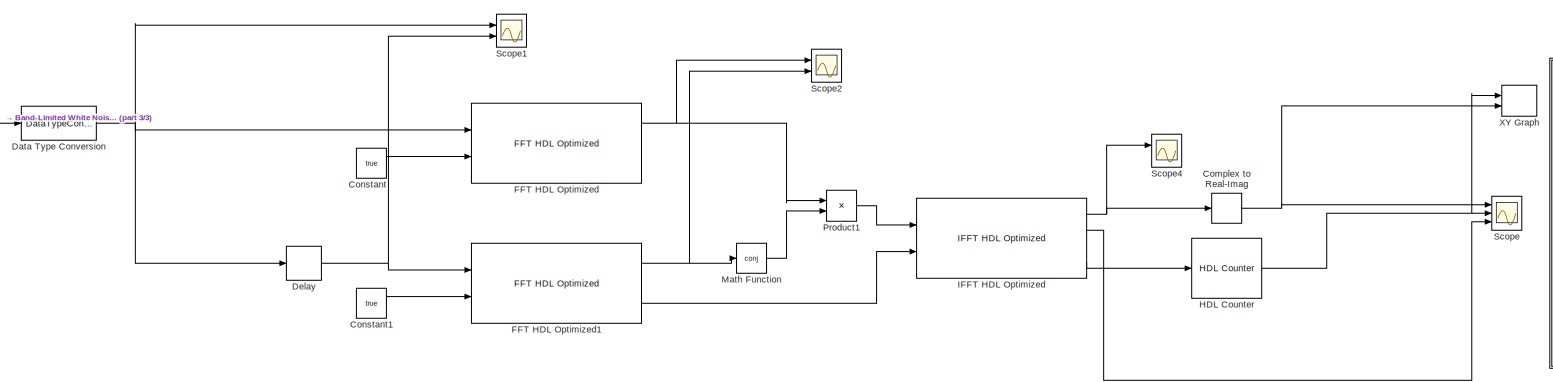
[diagram: root canvas - part 1/3, most of the canvas]
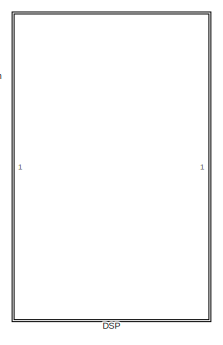
[diagram: root canvas - part 2/3, right side, full height]
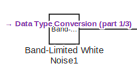
[diagram: root canvas - part 3/3, middle left region]
MODEL slx_fb6486566f5a
KIND model
CONFIG AbsTol = auto
CONFIG EnableMultiTasking = off
CONFIG FixedStep = 1/312.5e6
CONFIG MaxStep = auto
CONFIG MinStep = auto
CONFIG RelTol = 1e-3
CONFIG SampleTimeConstraint = Unconstrained
CONFIG SolverName = FixedStepDiscrete
CONFIG StartTime = 0.0
CONFIG StopTime = 0.0001
WORKSPACE source: mxarray member
WORKSPACE test = 0
BLOCK [Reference] Band-Limited White Noise1  REF=simulink/Sources/Band-Limited
White Noise
  Ports = [0, 1]
  SourceBlock = simulink/Sources/Band-Limited\nWhite Noise
  SourceProductBaseCode = SL
  SourceType = Band-Limited White Noise.
BLOCK [ComplexToRealImag] Complex to Real-Imag
  Output = Real
  Ports = [1, 1]
BLOCK [Constant] Constant
  Value = true
BLOCK [Constant] Constant1
  Value = true
BLOCK [SubSystem] DSP
  Ports = []
  RequestExecContextInheritance = off
BLOCK [DataTypeConversion] Data Type Conversion
  ConvertRealWorld = Stored Integer (SI)
  OutDataTypeStr = fixdt(1,16,0)
  RndMeth = Floor
  SaturateOnIntegerOverflow = off
BLOCK [Delay] Delay
  DelayLength = 80
  InitialCondition = 0
  InputPortMap = u0
  Ports = [1, 1]
BLOCK [Reference] FFT HDL Optimized  REF=dsphdlxfrm/FFT
HDL Optimized
  Ports = [2, 3]
  SourceBlock = dsphdlxfrm/FFT\nHDL Optimized
  SourceProductBaseCode = DS
  SourceType = FFT HDL Optimized
BLOCK [Reference] FFT HDL Optimized1  REF=dsphdlxfrm/FFT
HDL Optimized
  Ports = [2, 3]
  SourceBlock = dsphdlxfrm/FFT\nHDL Optimized
  SourceProductBaseCode = DS
  SourceType = FFT HDL Optimized
BLOCK [Reference] HDL Counter  REF=hdlsllib/Sources/HDL Counter
  Ports = [1, 1]
  SourceBlock = hdlsllib/Sources/HDL Counter
  SourceProductBaseCode = SL
  SourceType = HDL Counter
BLOCK [Reference] IFFT HDL Optimized  REF=dsphdlxfrm/IFFT
HDL Optimized
  Ports = [2, 4]
  SourceBlock = dsphdlxfrm/IFFT\nHDL Optimized
  SourceProductBaseCode = DS
  SourceType = IFFT HDL Optimized
BLOCK [Math] Math Function
  Operator = conj
  Ports = [1, 1]
BLOCK [Product] Product1
  Ports = [2, 1]
BLOCK [Scope] Scope
  Floating = off
  NumInputPorts = 3
  Ports = [3]
  ScopeSpecificationString = Simulink.scopes.TimeScopeBlockCfg('CurrentConfiguration', extmgr.ConfigurationSet(extmgr.Configuration('Core','General UI',true),extmgr.Configuration('Core','Source UI',true),extmgr.Configuration('Sources','WiredSimulink',true),extmgr.Configuration('Visuals','Time Domain',true,'SerializedDisplays',{struct('MinYLimReal','-1463.375','MaxYLimReal','8410.375','YLabelReal','','MinYLimMag','  0.00000','...<+2736ch>
BLOCK [Scope] Scope1
  Floating = off
  NumInputPorts = 2
  Ports = [2]
  ScopeSpecificationString = Simulink.scopes.TimeScopeBlockCfg('CurrentConfiguration', extmgr.ConfigurationSet(extmgr.Configuration('Core','General UI',true),extmgr.Configuration('Core','Source UI',true),extmgr.Configuration('Sources','WiredSimulink',true,'DataLoggingVariableName','ScopeData1'),extmgr.Configuration('Visuals','Time Domain',true,'SerializedDisplays',{struct('MinYLimReal','-26506.9059','MaxYLimReal','27441.90622...<+2045ch>
BLOCK [Scope] Scope2
  Floating = off
  NumInputPorts = 2
  Ports = [2]
  ScopeSpecificationString = Simulink.scopes.TimeScopeBlockCfg('CurrentConfiguration', extmgr.ConfigurationSet(extmgr.Configuration('Core','General UI',true),extmgr.Configuration('Core','Source UI',true),extmgr.Configuration('Sources','WiredSimulink',true,'DataLoggingVariableName','ScopeData2'),extmgr.Configuration('Visuals','Time Domain',true,'SerializedDisplays',{struct('MinYLimReal','-1219999.375','MaxYLimReal','1269494.37...<+2128ch>
BLOCK [Scope] Scope4
  Floating = off
  NumInputPorts = 2
  Ports = [2]
  ScopeSpecificationString = Simulink.scopes.TimeScopeBlockCfg('CurrentConfiguration', extmgr.ConfigurationSet(extmgr.Configuration('Core','General UI',true),extmgr.Configuration('Core','Source UI',true),extmgr.Configuration('Sources','WiredSimulink',true,'DataLoggingVariableName','ScopeData4'),extmgr.Configuration('Visuals','Time Domain',true,'SerializedDisplays',{struct('MinYLimReal','-1463.375','MaxYLimReal','8410.375','YL...<+2090ch>
BLOCK [Record] XY Graph
  CompatibilityTag = XY
  FileSettingsInternal = {"entries":[{"content":{"excelSettings":{"content":{},"type":"Streamout.ExcelSettings"}},"type":"Streamout.FileSettingStorage","uuid":"b44be613-558b-472d-8dec-aa5bded21848"}],"packageUris":["http://schema.mathworks.com/mf0/streamout_blocks/R2020a"],"version":"1.0"}
  Layout = [1 1]
  Ports = [2]
  SignalsInternal = {"entries":[{"content":{"signals":[{"content":{"blockPath":["System_Template/XY Graph"],"channel":[],"dimensions":[1],"domain":"System_Template/XY Graph","lineColor":"#a2142f","plots":[1],"port":1,"sid":[""],"signalID":860,"signalName":"HDL Counter"},"type":"RecordBlkView.Signal","uuid":"a7cc4d68-4c8c-4b30-902e-c34036ab9f0b"},{"content":{"blockPath":["System_Template/XY Graph"],"channel":[],"dimen...<+409ch>
  VisualizationBindings = {"xyplotplugin":{"info":[{"series":[{"bindingParametersList":[{"parameter":"X-Axis","signalID":860,"signalName":"HDL Counter"},{"parameter":"Y-Axis","signalID":864,"signalName":"Complex to\nReal-Imag"}],"seriesID":49152}],"subplotID":1}]}}
LINE Band-Limited White Noise1:1 -> Data Type Conversion:1
NET Complex to Real-Imag:1 -> Scope:1, XY Graph:2
LINE Constant1:1 -> FFT HDL Optimized1:2
LINE Constant:1 -> FFT HDL Optimized:2
NET Data Type Conversion:1 -> Delay:1, FFT HDL Optimized:1, Scope1:1
NET Delay:1 -> FFT HDL Optimized1:1, Scope1:2
NET FFT HDL Optimized1:1 -> Math Function:1, Scope2:2
LINE FFT HDL Optimized1:3 -> IFFT HDL Optimized:2
NET FFT HDL Optimized:1 -> Product1:1, Scope2:1
NET HDL Counter:1 -> Scope:2, XY Graph:1
NET IFFT HDL Optimized:1 -> Complex to Real-Imag:1, Scope4:1
LINE IFFT HDL Optimized:2 -> Scope:3
LINE IFFT HDL Optimized:4 -> HDL Counter:1
LINE Math Function:1 -> Product1:2
LINE Product1:1 -> IFFT HDL Optimized:1
note: NET lines group one-source signal fan-out (src -> all destinations, sorted); 1:1 wires keep LINE
